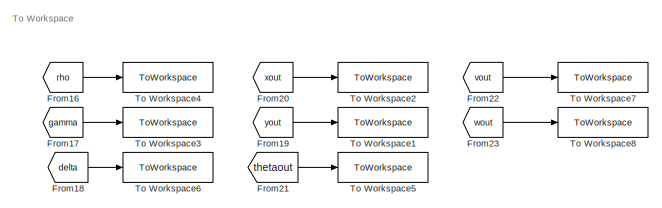
[diagram: root canvas - part 1/2, top left region]
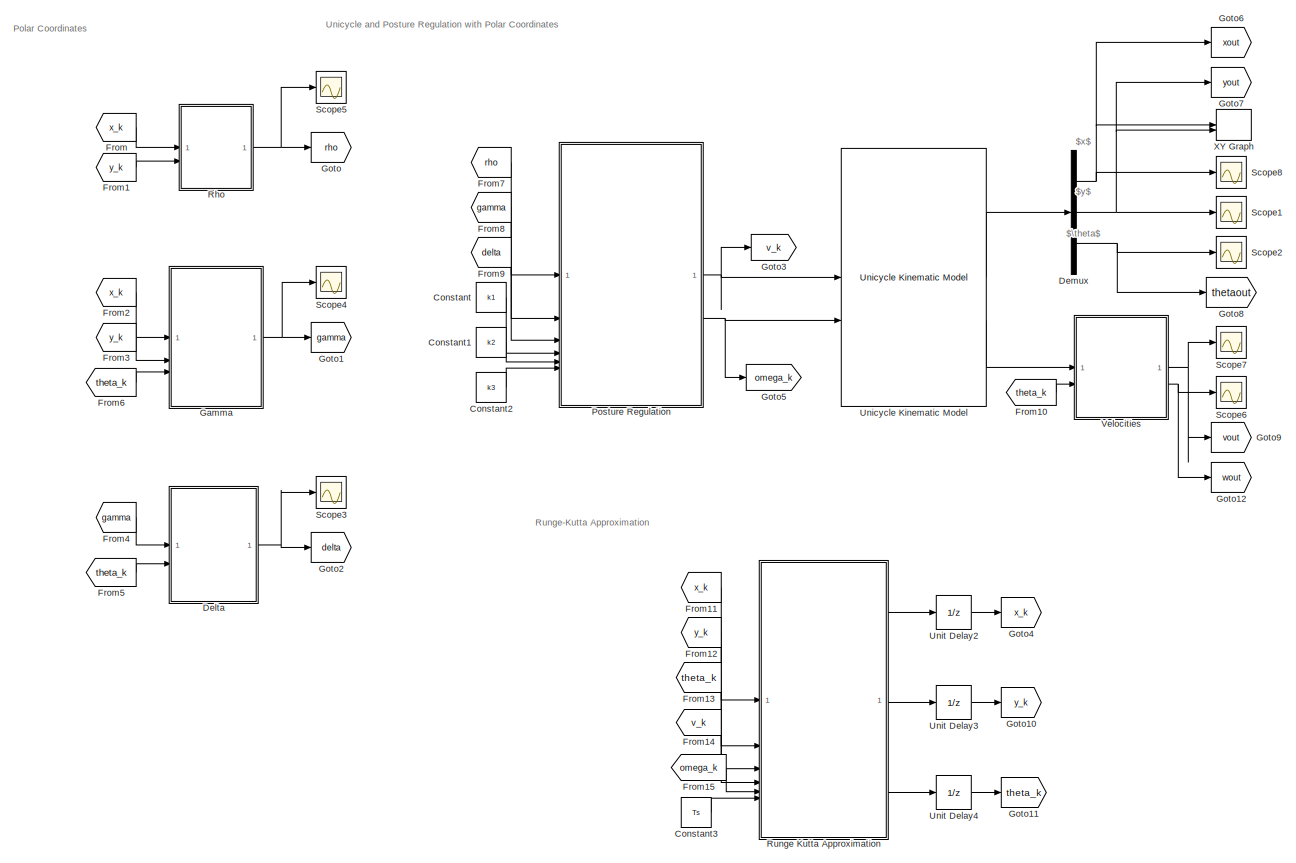
[diagram: root canvas - part 2/2, most of the canvas]
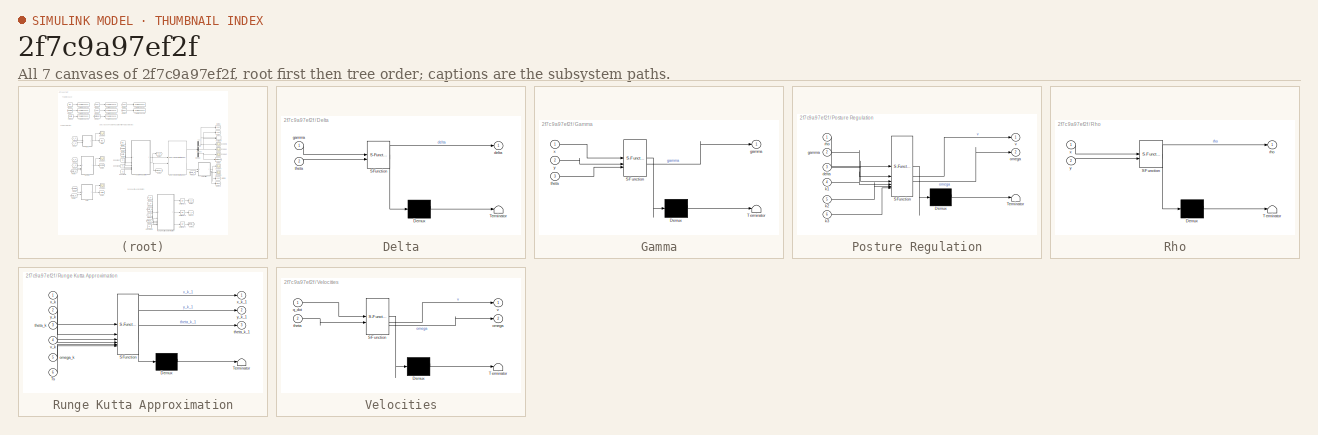
[diagram: thumbnail index - all 7 canvases of the model, root first then tree order]
MODEL slx_2f7c9a97ef2f
KIND model
CONFIG AbsTol = auto
CONFIG EnableMultiTasking = off
CONFIG FixedStep = Ts
CONFIG MaxStep = auto
CONFIG MinStep = auto
CONFIG RelTol = 1e-5
CONFIG SampleTimeConstraint = Unconstrained
CONFIG SolverName = FixedStepAuto
CONFIG StartTime = 0.0
CONFIG StopTime = T
BLOCK [Constant] Constant
  Value = k1
BLOCK [Constant] Constant1
  Value = k2
BLOCK [Constant] Constant2
  Value = k3
BLOCK [Constant] Constant3
  Value = Ts
BLOCK [SubSystem] Delta
  ErrorFcn = Stateflow.Translate.translate
  PermitHierarchicalResolution = ExplicitOnly
  SFBlockType = MATLAB Function
  TreatAsAtomicUnit = on
BLOCK [Demux] Delta/ Demux 
  Outputs = 1
BLOCK [S-Function] Delta/ SFunction 
  EnableBusSupport = on
  FunctionName = sf_sfun
  PortCounts = [2 2]
  SFcnIsStateOwnerBlock = off
  SFunctionDeploymentMode = off
  Tag = Stateflow S-Function 3
BLOCK [Terminator] Delta/ Terminator 
BLOCK [Outport] Delta/delta
BLOCK [Inport] Delta/gamma
BLOCK [Inport] Delta/theta
  Port = 2
BLOCK [Demux] Demux
  Outputs = 3
BLOCK [From] From
  GotoTag = x_k
BLOCK [From] From1
  GotoTag = y_k
BLOCK [From] From10
  GotoTag = theta_k
BLOCK [From] From11
  GotoTag = x_k
BLOCK [From] From12
  GotoTag = y_k
BLOCK [From] From13
  GotoTag = theta_k
BLOCK [From] From14
  GotoTag = v_k
BLOCK [From] From15
  GotoTag = omega_k
BLOCK [From] From16
  GotoTag = rho
BLOCK [From] From17
  GotoTag = gamma
BLOCK [From] From18
  GotoTag = delta
BLOCK [From] From19
  GotoTag = yout
BLOCK [From] From2
  GotoTag = x_k
BLOCK [From] From20
  GotoTag = xout
BLOCK [From] From21
  GotoTag = thetaout
BLOCK [From] From22
  GotoTag = vout
BLOCK [From] From23
  GotoTag = wout
BLOCK [From] From3
  GotoTag = y_k
BLOCK [From] From4
  GotoTag = gamma
BLOCK [From] From5
  GotoTag = theta_k
BLOCK [From] From6
  GotoTag = theta_k
BLOCK [From] From7
  GotoTag = rho
BLOCK [From] From8
  GotoTag = gamma
BLOCK [From] From9
  GotoTag = delta
BLOCK [SubSystem] Gamma
  ErrorFcn = Stateflow.Translate.translate
  PermitHierarchicalResolution = ExplicitOnly
  SFBlockType = MATLAB Function
  TreatAsAtomicUnit = on
BLOCK [Demux] Gamma/ Demux 
  Outputs = 1
BLOCK [S-Function] Gamma/ SFunction 
  EnableBusSupport = on
  FunctionName = sf_sfun
  PortCounts = [3 2]
  SFcnIsStateOwnerBlock = off
  SFunctionDeploymentMode = off
  Tag = Stateflow S-Function 1
BLOCK [Terminator] Gamma/ Terminator 
BLOCK [Outport] Gamma/gamma
BLOCK [Inport] Gamma/theta
  Port = 3
BLOCK [Inport] Gamma/x
BLOCK [Inport] Gamma/y
  Port = 2
BLOCK [Goto] Goto
  GotoTag = rho
BLOCK [Goto] Goto1
  GotoTag = gamma
BLOCK [Goto] Goto10
  GotoTag = y_k
BLOCK [Goto] Goto11
  GotoTag = theta_k
BLOCK [Goto] Goto12
  GotoTag = wout
BLOCK [Goto] Goto2
  GotoTag = delta
BLOCK [Goto] Goto3
  GotoTag = v_k
BLOCK [Goto] Goto4
  GotoTag = x_k
BLOCK [Goto] Goto5
  GotoTag = omega_k
BLOCK [Goto] Goto6
  GotoTag = xout
BLOCK [Goto] Goto7
  GotoTag = yout
BLOCK [Goto] Goto8
  GotoTag = thetaout
BLOCK [Goto] Goto9
  GotoTag = vout
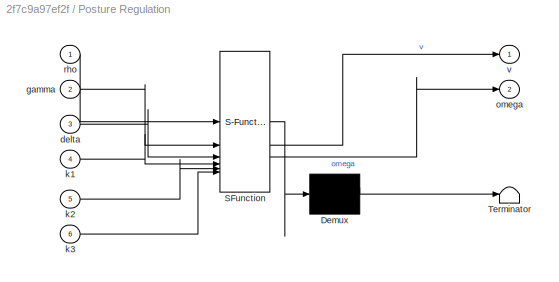
BLOCK [SubSystem] Posture Regulation
  ErrorFcn = Stateflow.Translate.translate
  PermitHierarchicalResolution = ExplicitOnly
  SFBlockType = MATLAB Function
  TreatAsAtomicUnit = on
BLOCK [Demux] Posture Regulation/ Demux 
  Outputs = 1
BLOCK [S-Function] Posture Regulation/ SFunction 
  EnableBusSupport = on
  FunctionName = sf_sfun
  PortCounts = [6 3]
  SFcnIsStateOwnerBlock = off
  SFunctionDeploymentMode = off
  Tag = Stateflow S-Function 4
BLOCK [Terminator] Posture Regulation/ Terminator 
BLOCK [Inport] Posture Regulation/delta
  Port = 3
BLOCK [Inport] Posture Regulation/gamma
  Port = 2
BLOCK [Inport] Posture Regulation/k1
  Port = 4
BLOCK [Inport] Posture Regulation/k2
  Port = 5
BLOCK [Inport] Posture Regulation/k3
  Port = 6
BLOCK [Outport] Posture Regulation/omega
  Port = 2
BLOCK [Inport] Posture Regulation/rho
BLOCK [Outport] Posture Regulation/v
BLOCK [SubSystem] Rho
  ErrorFcn = Stateflow.Translate.translate
  PermitHierarchicalResolution = ExplicitOnly
  SFBlockType = MATLAB Function
  TreatAsAtomicUnit = on
BLOCK [Demux] Rho/ Demux 
  Outputs = 1
BLOCK [S-Function] Rho/ SFunction 
  EnableBusSupport = on
  FunctionName = sf_sfun
  PortCounts = [2 2]
  SFcnIsStateOwnerBlock = off
  SFunctionDeploymentMode = off
  Tag = Stateflow S-Function 2
BLOCK [Terminator] Rho/ Terminator 
BLOCK [Outport] Rho/rho
BLOCK [Inport] Rho/x
BLOCK [Inport] Rho/y
  Port = 2
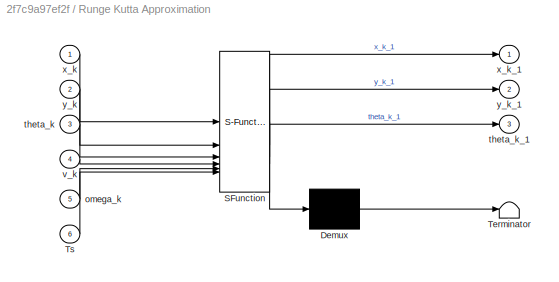
BLOCK [SubSystem] Runge Kutta Approximation
  ErrorFcn = Stateflow.Translate.translate
  PermitHierarchicalResolution = ExplicitOnly
  SFBlockType = MATLAB Function
  TreatAsAtomicUnit = on
BLOCK [Demux] Runge Kutta Approximation/ Demux 
  Outputs = 1
BLOCK [S-Function] Runge Kutta Approximation/ SFunction 
  EnableBusSupport = on
  FunctionName = sf_sfun
  PortCounts = [6 4]
  SFcnIsStateOwnerBlock = off
  SFunctionDeploymentMode = off
  Tag = Stateflow S-Function 5
BLOCK [Terminator] Runge Kutta Approximation/ Terminator 
BLOCK [Inport] Runge Kutta Approximation/Ts
  Port = 6
BLOCK [Inport] Runge Kutta Approximation/omega_k
  Port = 5
BLOCK [Inport] Runge Kutta Approximation/theta_k
  Port = 3
BLOCK [Outport] Runge Kutta Approximation/theta_k_1
  Port = 3
BLOCK [Inport] Runge Kutta Approximation/v_k
  Port = 4
BLOCK [Inport] Runge Kutta Approximation/x_k
BLOCK [Outport] Runge Kutta Approximation/x_k_1
BLOCK [Inport] Runge Kutta Approximation/y_k
  Port = 2
BLOCK [Outport] Runge Kutta Approximation/y_k_1
  Port = 2
BLOCK [Scope] Scope1
  Floating = off
  NumInputPorts = 1
  ScopeSpecificationString = Simulink.scopes.TimeScopeBlockCfg('CurrentConfiguration', extmgr.ConfigurationSet(extmgr.Configuration('Core','General UI',true),extmgr.Configuration('Core','Source UI',true),extmgr.Configuration('Sources','WiredSimulink',true,'DataLoggingVariableName','ScopeData2'),extmgr.Configuration('Visuals','Time Domain',true,'SerializedDisplays',{struct('MinYLimReal','-2.40883','MaxYLimReal','2.11294','YLab...<+1366ch>
BLOCK [Scope] Scope2
  Floating = off
  NumInputPorts = 1
  ScopeSpecificationString = Simulink.scopes.TimeScopeBlockCfg('CurrentConfiguration', extmgr.ConfigurationSet(extmgr.Configuration('Core','General UI',true),extmgr.Configuration('Core','Source UI',true),extmgr.Configuration('Sources','WiredSimulink',true,'DataLoggingVariableName','ScopeData3'),extmgr.Configuration('Visuals','Time Domain',true,'SerializedDisplays',{struct('MinYLimReal','-0.00009','MaxYLimReal','0.00008','YLab...<+1443ch>
BLOCK [Scope] Scope3
  Floating = off
  NumInputPorts = 1
  ScopeSpecificationString = Simulink.scopes.TimeScopeBlockCfg('CurrentConfiguration', extmgr.ConfigurationSet(extmgr.Configuration('Core','General UI',true),extmgr.Configuration('Core','Source UI',true),extmgr.Configuration('Sources','WiredSimulink',true,'DataLoggingVariableName','ScopeData1'),extmgr.Configuration('Visuals','Time Domain',true,'SerializedDisplays',{struct('MinYLimReal','-0.41707','MaxYLimReal','3.75992','YLab...<+1425ch>
BLOCK [Scope] Scope4
  Floating = off
  NumInputPorts = 1
  ScopeSpecificationString = Simulink.scopes.TimeScopeBlockCfg('CurrentConfiguration', extmgr.ConfigurationSet(extmgr.Configuration('Core','General UI',true),extmgr.Configuration('Core','Source UI',true),extmgr.Configuration('Sources','WiredSimulink',true,'DataLoggingVariableName','ScopeData2'),extmgr.Configuration('Visuals','Time Domain',true,'SerializedDisplays',{struct('MinYLimReal','-1.20895','MaxYLimReal','2.32102','YLab...<+1422ch>
BLOCK [Scope] Scope5
  Floating = off
  NumInputPorts = 1
  ScopeSpecificationString = Simulink.scopes.TimeScopeBlockCfg('CurrentConfiguration', extmgr.ConfigurationSet(extmgr.Configuration('Core','General UI',true),extmgr.Configuration('Core','Source UI',true),extmgr.Configuration('Sources','WiredSimulink',true,'DataLoggingVariableName','ScopeData3'),extmgr.Configuration('Visuals','Time Domain',true,'SerializedDisplays',{struct('MinYLimReal','-1.25619','MaxYLimReal','11.30611','YLa...<+1421ch>
BLOCK [Scope] Scope6
  Floating = off
  NumInputPorts = 1
  ScopeSpecificationString = Simulink.scopes.TimeScopeBlockCfg('CurrentConfiguration', extmgr.ConfigurationSet(extmgr.Configuration('Core','General UI',true),extmgr.Configuration('Core','Source UI',true),extmgr.Configuration('Sources','WiredSimulink',true,'DataLoggingVariableName','ScopeData4'),extmgr.Configuration('Visuals','Time Domain',true,'SerializedDisplays',{struct('MinYLimReal','-1.19635','MaxYLimReal','4.83262','YLab...<+1400ch>
BLOCK [Scope] Scope7
  Floating = off
  NumInputPorts = 1
  ScopeSpecificationString = Simulink.scopes.TimeScopeBlockCfg('CurrentConfiguration', extmgr.ConfigurationSet(extmgr.Configuration('Core','General UI',true),extmgr.Configuration('Core','Source UI',true),extmgr.Configuration('Sources','WiredSimulink',true,'DataLoggingVariableName','ScopeData5'),extmgr.Configuration('Visuals','Time Domain',true,'SerializedDisplays',{struct('MinYLimReal','-5.42033','MaxYLimReal','9.90385','YLab...<+1415ch>
BLOCK [Scope] Scope8
  Floating = off
  NumInputPorts = 1
  ScopeSpecificationString = Simulink.scopes.TimeScopeBlockCfg('CurrentConfiguration', extmgr.ConfigurationSet(extmgr.Configuration('Core','General UI',true),extmgr.Configuration('Core','Source UI',true),extmgr.Configuration('Sources','WiredSimulink',true,'DataLoggingVariableName','ScopeData1'),extmgr.Configuration('Visuals','Time Domain',true,'SerializedDisplays',{struct('MinYLimReal','0.000182','MaxYLimReal','0.000221','YLa...<+1416ch>
BLOCK [ToWorkspace] To Workspace1
  FixptAsFi = on
  MaxDataPoints = inf
  SampleTime = -1
  SaveFormat = Timeseries
  VariableName = y
BLOCK [ToWorkspace] To Workspace2
  FixptAsFi = on
  MaxDataPoints = inf
  SampleTime = -1
  SaveFormat = Timeseries
  VariableName = x
BLOCK [ToWorkspace] To Workspace3
  FixptAsFi = on
  MaxDataPoints = inf
  SampleTime = -1
  SaveFormat = Timeseries
  VariableName = gamma
BLOCK [ToWorkspace] To Workspace4
  FixptAsFi = on
  MaxDataPoints = inf
  SampleTime = -1
  SaveFormat = Timeseries
  VariableName = rho
BLOCK [ToWorkspace] To Workspace5
  FixptAsFi = on
  MaxDataPoints = inf
  SampleTime = -1
  SaveFormat = Timeseries
  VariableName = theta
BLOCK [ToWorkspace] To Workspace6
  FixptAsFi = on
  MaxDataPoints = inf
  SampleTime = -1
  SaveFormat = Timeseries
  VariableName = delta
BLOCK [ToWorkspace] To Workspace7
  FixptAsFi = on
  MaxDataPoints = inf
  SampleTime = -1
  SaveFormat = Timeseries
  VariableName = v
BLOCK [ToWorkspace] To Workspace8
  FixptAsFi = on
  MaxDataPoints = inf
  SampleTime = -1
  SaveFormat = Timeseries
  VariableName = w
BLOCK [Reference] Unicycle Kinematic Model  REF=robotmobilelib/Unicycle Kinematic Model
  SourceBlock = robotmobilelib/Unicycle Kinematic Model
  SourceType = Unicycle Kinematic Model
BLOCK [UnitDelay] Unit Delay2
  HasFrameUpgradeWarning = on
  InitialCondition = q_i(1)
  SampleTime = Ts
BLOCK [UnitDelay] Unit Delay3
  HasFrameUpgradeWarning = on
  InitialCondition = q_i(2)
  SampleTime = Ts
BLOCK [UnitDelay] Unit Delay4
  HasFrameUpgradeWarning = on
  InitialCondition = q_i(3)
  SampleTime = Ts
BLOCK [SubSystem] Velocities
  ErrorFcn = Stateflow.Translate.translate
  PermitHierarchicalResolution = ExplicitOnly
  SFBlockType = MATLAB Function
  TreatAsAtomicUnit = on
BLOCK [Demux] Velocities/ Demux 
  Outputs = 1
BLOCK [S-Function] Velocities/ SFunction 
  EnableBusSupport = on
  FunctionName = sf_sfun
  PortCounts = [2 3]
  SFcnIsStateOwnerBlock = off
  SFunctionDeploymentMode = off
  Tag = Stateflow S-Function 6
BLOCK [Terminator] Velocities/ Terminator 
BLOCK [Outport] Velocities/omega
  Port = 2
BLOCK [Inport] Velocities/q_dot
BLOCK [Inport] Velocities/theta
  Port = 2
BLOCK [Outport] Velocities/v
BLOCK [Record] XY Graph
  CompatibilityTag = XY
  FileSettingsInternal = {"entries":[{"content":{"excelSettings":{"content":{},"type":"Streamout.ExcelSettings"}},"type":"Streamout.FileSettingStorage","uuid":""}],"packageUris":["http:\/\/schema.mathworks.com\/mf0\/streamout_blocks\/R2020a"],"version":"1.0"}
  Layout = [1 1]
  SignalsInternal = {"entries":[{"content":{"signals":[{"content":{"blockPath":[],"dimensions":[1],"domain":"","lineColor":"#a2142f","plots":[1],"port":1,"sid":[""],"signalID":907,"signalName":"Demux:1"},"type":"RecordBlkView.Signal","uuid":""},{"content":{"blockPath":[],"dimensions":[1],"domain":"","lineColor":"#139fff","plots":[1],"port":2,"sid":[""],"signalID":911,"signalName":"Demux:2"},"type":"RecordBlkView.Sign...<+160ch>
  VisualizationBindings = {"xyplotplugin":{"info":[{"series":[{"bindingParametersList":[{"parameter":"X-Axis","signalID":907,"signalName":"Demux:1"},{"parameter":"Y-Axis","signalID":911,"signalName":"Demux:2"}],"seriesID":55378}],"subplotID":1}]}}
ANNOTATION (root): Unicycle and Posture Regulation with Polar Coordinates
ANNOTATION (root): Polar Coordinates
ANNOTATION (root): Runge-Kutta Approximation
ANNOTATION (root): To Workspace
ANNOTATION (root): $\theta$
ANNOTATION (root): $x$
ANNOTATION (root): $y$
LINE Constant1:1 -> Posture Regulation:5
LINE Constant2:1 -> Posture Regulation:6
LINE Constant3:1 -> Runge Kutta Approximation:6
LINE Constant:1 -> Posture Regulation:4
NET Delta:1 -> Goto2:1, Scope3:1
NET Demux:1 -> Goto6:1, Scope8:1, XY Graph:1
NET Demux:2 -> Goto7:1, Scope1:1, XY Graph:2
NET Demux:3 -> Goto8:1, Scope2:1
LINE From10:1 -> Velocities:2
LINE From11:1 -> Runge Kutta Approximation:1
LINE From12:1 -> Runge Kutta Approximation:2
LINE From13:1 -> Runge Kutta Approximation:3
LINE From14:1 -> Runge Kutta Approximation:4
LINE From15:1 -> Runge Kutta Approximation:5
LINE From16:1 -> To Workspace4:1
LINE From17:1 -> To Workspace3:1
LINE From18:1 -> To Workspace6:1
LINE From19:1 -> To Workspace1:1
LINE From1:1 -> Rho:2
LINE From20:1 -> To Workspace2:1
LINE From21:1 -> To Workspace5:1
LINE From22:1 -> To Workspace7:1
LINE From23:1 -> To Workspace8:1
LINE From2:1 -> Gamma:1
LINE From3:1 -> Gamma:2
LINE From4:1 -> Delta:1
LINE From5:1 -> Delta:2
LINE From6:1 -> Gamma:3
LINE From7:1 -> Posture Regulation:1
LINE From8:1 -> Posture Regulation:2
LINE From9:1 -> Posture Regulation:3
LINE From:1 -> Rho:1
NET Gamma:1 -> Goto1:1, Scope4:1
NET Posture Regulation:1 -> Goto3:1, Unicycle Kinematic Model:1
NET Posture Regulation:2 -> Goto5:1, Unicycle Kinematic Model:2
NET Rho:1 -> Goto:1, Scope5:1
LINE Runge Kutta Approximation:1 -> Unit Delay2:1
LINE Runge Kutta Approximation:2 -> Unit Delay3:1
LINE Runge Kutta Approximation:3 -> Unit Delay4:1
LINE Unicycle Kinematic Model:1 -> Demux:1
LINE Unicycle Kinematic Model:2 -> Velocities:1
LINE Unit Delay2:1 -> Goto4:1
LINE Unit Delay3:1 -> Goto10:1
LINE Unit Delay4:1 -> Goto11:1
NET Velocities:1 -> Goto9:1, Scope7:1
NET Velocities:2 -> Goto12:1, Scope6:1
note: NET lines group one-source signal fan-out (src -> all destinations, sorted); 1:1 wires keep LINE
CHART Gamma states=1 transitions=1
  STATE_LABEL 'eML_blk_kernel()'
  STATE_LABEL 'SCRIPT:\nfunction gamma = gamma(x, y, theta)\n\ngamma = atan2(y,x) - theta + pi;'
CHART Rho states=1 transitions=1
  STATE_LABEL 'eML_blk_kernel()'
  STATE_LABEL 'SCRIPT:\nfunction rho = rho(x, y)\n\nrho = sqrt(x^2 + y^2);\n'
CHART Delta states=1 transitions=1
  STATE_LABEL 'eML_blk_kernel()'
  STATE_LABEL 'SCRIPT:\nfunction delta = delta(gamma, theta)\n\ndelta = gamma + theta;'
CHART Posture Regulation states=1 transitions=1
  STATE_LABEL 'eML_blk_kernel()'
  STATE_LABEL 'SCRIPT:\nfunction [v,omega] = posture_regulation(rho, gamma, delta, k1, k2, k3)\n\nv = k1*rho*cos(gamma);\nomega = k2*gamma + k1*sin(gamma)*cos(gamma)*(1+k3*delta/gamma);\n'
CHART Runge Kutta Approximation states=1 transitions=1
  STATE_LABEL 'eML_blk_kernel()'
  STATE_LABEL 'SCRIPT:\nfunction [x_k_1, y_k_1, theta_k_1] = runge_kutta(x_k, y_k, theta_k, v_k, omega_k, Ts)\n\nx_k_1 = x_k + v_k*Ts*cos(theta_k + 1/2*omega_k*Ts);\ny_k_1 = y_k + v_k*Ts*sin(theta_k + 1/2*omega_k*Ts);\ntheta_k_1 = theta_k + omega_k*Ts;'
CHART Velocities states=1 transitions=1
  STATE_LABEL 'eML_blk_kernel()'
  STATE_LABEL 'SCRIPT:\nfunction [v, omega] = velocities(q_dot, theta)\n\nv = q_dot(1)/cos(theta);\nomega = q_dot(3);'
CHART  states=0 transitions=0
CHART  states=0 transitions=0
CHART  states=0 transitions=0
CHART  states=0 transitions=0
CHART  states=0 transitions=0
CHART  states=0 transitions=0
